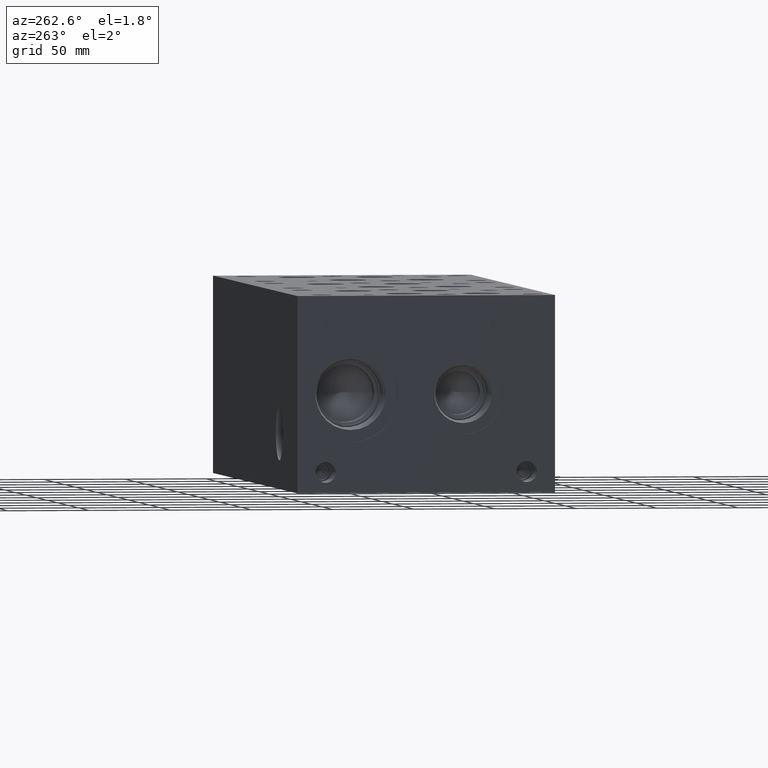
[diagram: clean part render]
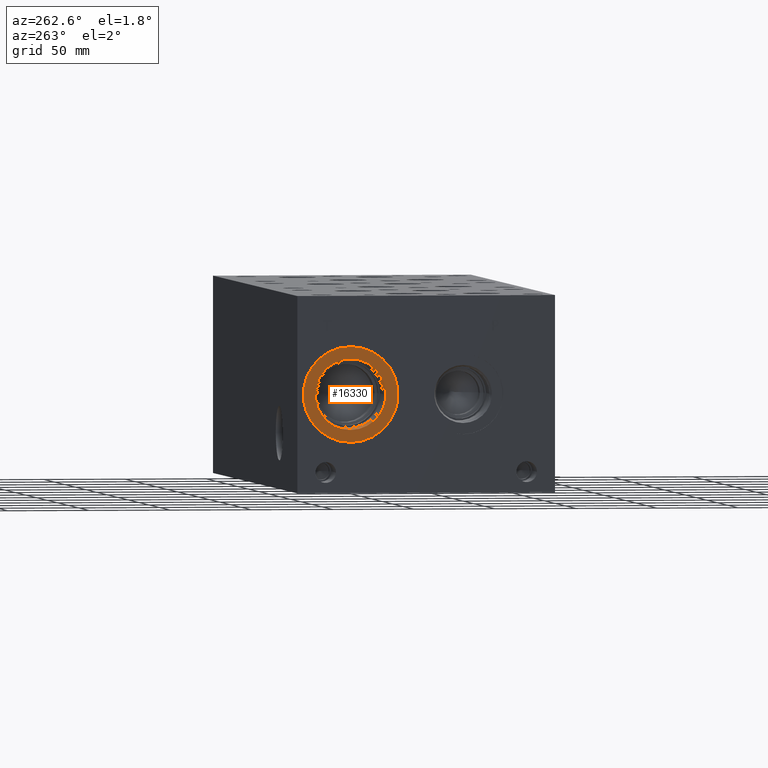
[diagram: same view with one face highlighted and labeled with its STEP entity id]
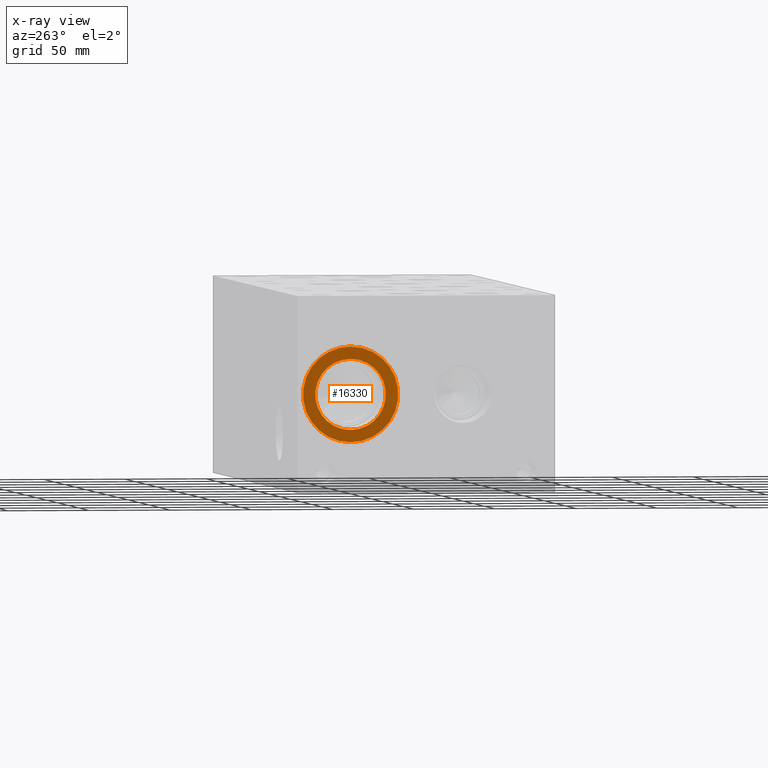
[diagram: x-ray of the same camera — body ghosted, the highlighted face saturated]
A machine part, auxiliary view. The second image highlights one B-rep face of the part: STEP entity #16330.
The next image is the same camera in x-ray: the body ghosted, the highlighted face saturated — about 0% of this face is hidden behind the body in this view.
In plain terms, the highlighted planar face has unit normal (1, 0, 0).
Its self-contained STEP definition (entity closure, byte-faithful):
#757=CIRCLE('',#17300,29.2862);
#758=CIRCLE('',#17301,29.2862);
#759=CIRCLE('',#17303,21.7551);
#760=CIRCLE('',#17304,21.7551);
#1474=FACE_BOUND('',#3241,.T.);
#2276=FACE_OUTER_BOUND('',#3240,.T.);
#3240=EDGE_LOOP('',(#13979,#13980));
#3241=EDGE_LOOP('',(#13981,#13982));
#7514=VERTEX_POINT('',#28046);
#7515=VERTEX_POINT('',#28048);
#7516=VERTEX_POINT('',#28052);
#7517=VERTEX_POINT('',#28053);
#9743=EDGE_CURVE('',#7514,#7515,#757,.T.);
#9744=EDGE_CURVE('',#7515,#7514,#758,.T.);
#9745=EDGE_CURVE('',#7516,#7517,#759,.T.);
#9746=EDGE_CURVE('',#7517,#7516,#760,.T.);
#13979=ORIENTED_EDGE('',*,*,#9744,.F.);
#13980=ORIENTED_EDGE('',*,*,#9743,.F.);
#13981=ORIENTED_EDGE('',*,*,#9745,.T.);
#13982=ORIENTED_EDGE('',*,*,#9746,.T.);
#15019=PLANE('',#17302);
#16330=ADVANCED_FACE('',(#2276,#1474),#15019,.F.);
#17300=AXIS2_PLACEMENT_3D('',#28049,#20584,#20585);
#17301=AXIS2_PLACEMENT_3D('',#28050,#20586,#20587);
#17302=AXIS2_PLACEMENT_3D('',#28051,#20588,#20589);
#17303=AXIS2_PLACEMENT_3D('',#28054,#20590,#20591);
#17304=AXIS2_PLACEMENT_3D('',#28055,#20592,#20593);
#20584=DIRECTION('center_axis',(1.,0.,0.));
#20585=DIRECTION('ref_axis',(0.,0.,-1.));
#20586=DIRECTION('center_axis',(1.,0.,0.));
#20587=DIRECTION('ref_axis',(0.,0.,-1.));
#20588=DIRECTION('center_axis',(1.,0.,0.));
#20589=DIRECTION('ref_axis',(0.,0.,-1.));
#20590=DIRECTION('center_axis',(1.,0.,0.));
#20591=DIRECTION('ref_axis',(0.,0.,-1.));
#20592=DIRECTION('center_axis',(1.,0.,0.));
#20593=DIRECTION('ref_axis',(0.,0.,-1.));
#28046=CARTESIAN_POINT('',(0.7874,125.8316,31.0388));
#28048=CARTESIAN_POINT('',(0.7874,125.8316,89.6112));
#28049=CARTESIAN_POINT('Origin',(0.7874,125.8316,60.325));
#28050=CARTESIAN_POINT('Origin',(0.7874,125.8316,60.325));
#28051=CARTESIAN_POINT('Origin',(0.7874,125.8316,82.0801));
#28052=CARTESIAN_POINT('',(0.7874,125.8316,82.0801));
#28053=CARTESIAN_POINT('',(0.7874,125.8316,38.5699));
#28054=CARTESIAN_POINT('Origin',(0.7874,125.8316,60.325));
#28055=CARTESIAN_POINT('Origin',(0.7874,125.8316,60.325));